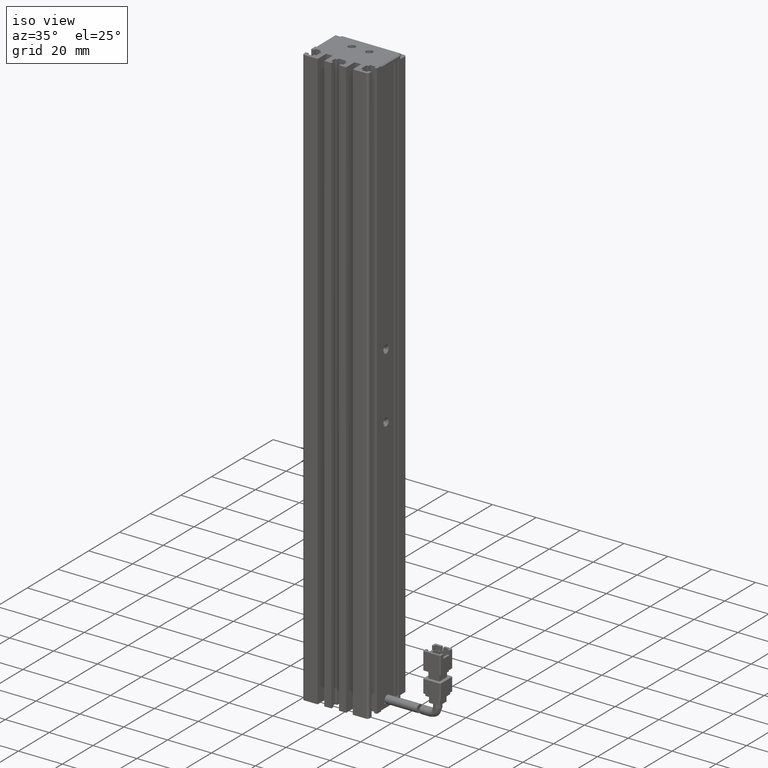
[diagram: clean part render]
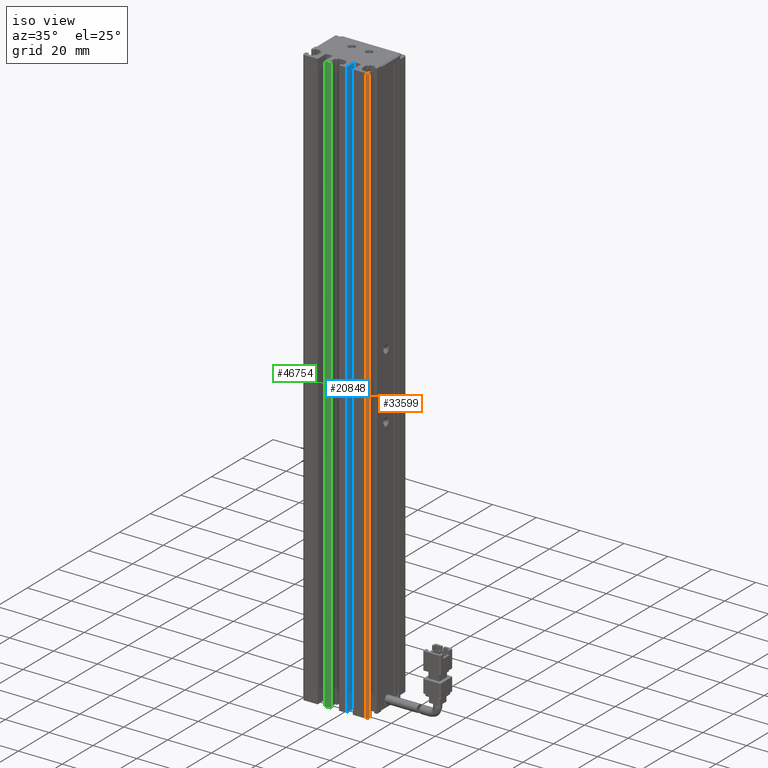
[diagram: same view with three faces highlighted in distinct colors, each labeled with its STEP entity id]
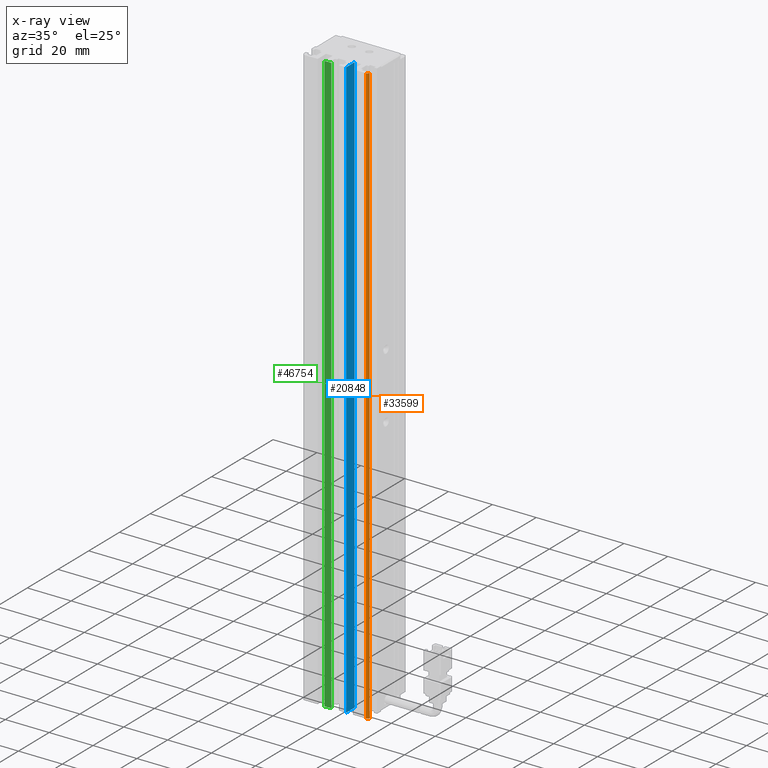
[diagram: x-ray of the same camera — body ghosted, the three highlighted faces saturated]
A machine part, iso view with three faces highlighted in distinct colors.
The next image is the same camera in x-ray (body ghosted, the three faces saturated) — at least one of them is partly hidden behind the body in this view.
Their STEP definitions:

[orange] entity #33599 — the highlighted cylindrical surface (edge-blend (fillet) strip) has radius 1 mm, axis along (-0, -0, -1).
#150 = DIRECTION ( 'NONE',  ( -0.0000000000000000000, -0.0000000000000000000, -1.000000000000000000 ) ) ;
#304 = CARTESIAN_POINT ( 'NONE',  ( 54.92537974683542500, 10.69594479660386800, 18.00000000000000400 ) ) ;
#1325 = AXIS2_PLACEMENT_3D ( 'NONE', #32957, #37242, #54374 ) ;
#1627 = CARTESIAN_POINT ( 'NONE',  ( 55.92537974683542500, 11.69594479660387000, 18.00000000000000400 ) ) ;
#1902 = LINE ( 'NONE', #30102, #13283 ) ;
#1970 = VERTEX_POINT ( 'NONE', #23287 ) ;
#3886 = VERTEX_POINT ( 'NONE', #47328 ) ;
#4086 = CYLINDRICAL_SURFACE ( 'NONE', #1325, 1.000000000000000900 ) ;
#5127 = VERTEX_POINT ( 'NONE', #30807 ) ;
#7790 = VECTOR ( 'NONE', #44884, 1000.000000000000000 ) ;
#8602 = ORIENTED_EDGE ( 'NONE', *, *, #23253, .T. ) ;
#8910 = EDGE_CURVE ( 'NONE', #3886, #5127, #28821, .T. ) ;
#10462 = CIRCLE ( 'NONE', #30292, 1.000000000000000900 ) ;
#13283 = VECTOR ( 'NONE', #150, 1000.000000000000000 ) ;
#17462 = AXIS2_PLACEMENT_3D ( 'NONE', #22040, #21932, #21863 ) ;
#17649 = ORIENTED_EDGE ( 'NONE', *, *, #19597, .T. ) ;
#17737 = VERTEX_POINT ( 'NONE', #304 ) ;
#18497 = CARTESIAN_POINT ( 'NONE',  ( 54.92537974683542500, 11.69594479660387000, 18.00000000000000400 ) ) ;
#19597 = EDGE_CURVE ( 'NONE', #1970, #17737, #10462, .T. ) ;
#21863 = DIRECTION ( 'NONE',  ( -1.000000000000000000, 0.0000000000000000000, 0.0000000000000000000 ) ) ;
#21932 = DIRECTION ( 'NONE',  ( 0.0000000000000000000, 0.0000000000000000000, 1.000000000000000000 ) ) ;
#22040 = CARTESIAN_POINT ( 'NONE',  ( 54.92537974683542500, 11.69594479660387000, -248.0000000000000000 ) ) ;
#22771 = DIRECTION ( 'NONE',  ( -1.000000000000000000, 0.0000000000000000000, 0.0000000000000000000 ) ) ;
#23253 = EDGE_CURVE ( 'NONE', #17737, #3886, #1902, .T. ) ;
#23287 = CARTESIAN_POINT ( 'NONE',  ( 55.92537974683542500, 11.69594479660387000, 18.00000000000000400 ) ) ;
#28821 = CIRCLE ( 'NONE', #17462, 1.000000000000000900 ) ;
#29397 = EDGE_CURVE ( 'NONE', #5127, #1970, #53259, .T. ) ;
#30102 = CARTESIAN_POINT ( 'NONE',  ( 54.92537974683542500, 10.69594479660386800, 18.00000000000000400 ) ) ;
#30292 = AXIS2_PLACEMENT_3D ( 'NONE', #18497, #48328, #22771 ) ;
#30807 = CARTESIAN_POINT ( 'NONE',  ( 55.92537974683542500, 11.69594479660387000, -248.0000000000000000 ) ) ;
#32760 = ORIENTED_EDGE ( 'NONE', *, *, #8910, .T. ) ;
#32957 = CARTESIAN_POINT ( 'NONE',  ( 54.92537974683542500, 11.69594479660387000, 18.00000000000000400 ) ) ;
#33599 = ADVANCED_FACE ( 'NONE', ( #53590 ), #4086, .T. ) ;
#37242 = DIRECTION ( 'NONE',  ( -0.0000000000000000000, -0.0000000000000000000, -1.000000000000000000 ) ) ;
#44884 = DIRECTION ( 'NONE',  ( 0.0000000000000000000, 0.0000000000000000000, 1.000000000000000000 ) ) ;
#47035 = EDGE_LOOP ( 'NONE', ( #17649, #8602, #32760, #51494 ) ) ;
#47328 = CARTESIAN_POINT ( 'NONE',  ( 54.92537974683542500, 10.69594479660386800, -248.0000000000000000 ) ) ;
#48328 = DIRECTION ( 'NONE',  ( -0.0000000000000000000, -0.0000000000000000000, -1.000000000000000000 ) ) ;
#51494 = ORIENTED_EDGE ( 'NONE', *, *, #29397, .T. ) ;
#53259 = LINE ( 'NONE', #1627, #7790 ) ;
#53590 = FACE_OUTER_BOUND ( 'NONE', #47035, .T. ) ;
#54374 = DIRECTION ( 'NONE',  ( -1.000000000000000000, 0.0000000000000000000, 0.0000000000000000000 ) ) ;

[blue] entity #20848 — the highlighted planar face has unit normal (-1, -0, 0).
#3830 = ORIENTED_EDGE ( 'NONE', *, *, #28491, .F. ) ;
#7139 = CARTESIAN_POINT ( 'NONE',  ( 45.92537974683541800, 16.19594479660386800, 18.00000000000000400 ) ) ;
#8281 = EDGE_CURVE ( 'NONE', #24621, #10639, #43686, .T. ) ;
#9005 = LINE ( 'NONE', #47831, #31832 ) ;
#10090 = DIRECTION ( 'NONE',  ( 0.0000000000000000000, 0.0000000000000000000, 1.000000000000000000 ) ) ;
#10639 = VERTEX_POINT ( 'NONE', #32795 ) ;
#10841 = FACE_OUTER_BOUND ( 'NONE', #22033, .T. ) ;
#10905 = CARTESIAN_POINT ( 'NONE',  ( 45.92537974683541800, 10.69594479660386800, 18.00000000000000400 ) ) ;
#13137 = DIRECTION ( 'NONE',  ( -1.000000000000000000, -3.154042683594196600E-016, 0.0000000000000000000 ) ) ;
#16170 = VECTOR ( 'NONE', #41427, 1000.000000000000000 ) ;
#16669 = VERTEX_POINT ( 'NONE', #10905 ) ;
#17349 = PLANE ( 'NONE',  #37922 ) ;
#18418 = CARTESIAN_POINT ( 'NONE',  ( 45.92537974683541800, 10.69594479660386800, -248.0000000000000000 ) ) ;
#20848 = ADVANCED_FACE ( 'NONE', ( #10841 ), #17349, .F. ) ;
#21837 = VECTOR ( 'NONE', #10090, 1000.000000000000000 ) ;
#22033 = EDGE_LOOP ( 'NONE', ( #3830, #22346, #50449, #53137 ) ) ;
#22268 = DIRECTION ( 'NONE',  ( 0.0000000000000000000, 1.000000000000000000, -0.0000000000000000000 ) ) ;
#22346 = ORIENTED_EDGE ( 'NONE', *, *, #26509, .F. ) ;
#24621 = VERTEX_POINT ( 'NONE', #18418 ) ;
#26509 = EDGE_CURVE ( 'NONE', #16669, #39379, #9005, .T. ) ;
#27276 = CARTESIAN_POINT ( 'NONE',  ( 45.92537974683541800, 16.19594479660386800, 18.00000000000000400 ) ) ;
#28491 = EDGE_CURVE ( 'NONE', #39379, #10639, #50277, .T. ) ;
#31480 = CARTESIAN_POINT ( 'NONE',  ( 45.92537974683541800, 10.69594479660386800, 18.00000000000000400 ) ) ;
#31832 = VECTOR ( 'NONE', #22268, 1000.000000000000000 ) ;
#32795 = CARTESIAN_POINT ( 'NONE',  ( 45.92537974683541800, 16.19594479660386800, -248.0000000000000000 ) ) ;
#33647 = VECTOR ( 'NONE', #49324, 1000.000000000000000 ) ;
#37922 = AXIS2_PLACEMENT_3D ( 'NONE', #38829, #13137, #43158 ) ;
#38829 = CARTESIAN_POINT ( 'NONE',  ( 45.92537974683541800, 7.083797468354439400, 18.00000000000000400 ) ) ;
#39379 = VERTEX_POINT ( 'NONE', #27276 ) ;
#39977 = EDGE_CURVE ( 'NONE', #24621, #16669, #49907, .T. ) ;
#41427 = DIRECTION ( 'NONE',  ( 0.0000000000000000000, -0.0000000000000000000, -1.000000000000000000 ) ) ;
#43158 = DIRECTION ( 'NONE',  ( 3.154042683594196600E-016, -1.000000000000000000, 0.0000000000000000000 ) ) ;
#43686 = LINE ( 'NONE', #51254, #33647 ) ;
#47831 = CARTESIAN_POINT ( 'NONE',  ( 45.92537974683541800, 7.083797468354437600, 18.00000000000000400 ) ) ;
#49324 = DIRECTION ( 'NONE',  ( 0.0000000000000000000, 1.000000000000000000, -0.0000000000000000000 ) ) ;
#49907 = LINE ( 'NONE', #31480, #21837 ) ;
#50277 = LINE ( 'NONE', #7139, #16170 ) ;
#50449 = ORIENTED_EDGE ( 'NONE', *, *, #39977, .F. ) ;
#51254 = CARTESIAN_POINT ( 'NONE',  ( 45.92537974683541800, 7.083797468354437600, -248.0000000000000000 ) ) ;
#53137 = ORIENTED_EDGE ( 'NONE', *, *, #8281, .T. ) ;

[green] entity #46754 — the highlighted planar face has unit normal (0, -1, 0).
#1273 = ORIENTED_EDGE ( 'NONE', *, *, #22084, .T. ) ;
#5808 = ORIENTED_EDGE ( 'NONE', *, *, #30714, .F. ) ;
#6907 = LINE ( 'NONE', #11849, #51108 ) ;
#10540 = CARTESIAN_POINT ( 'NONE',  ( 40.92537974683542500, 10.69594479660386800, -248.0000000000000000 ) ) ;
#10983 = CARTESIAN_POINT ( 'NONE',  ( 39.17537974683542500, 10.69594479660386800, -248.0000000000000000 ) ) ;
#11849 = CARTESIAN_POINT ( 'NONE',  ( 40.92537974683542500, 10.69594479660386800, 18.00000000000000400 ) ) ;
#12539 = CARTESIAN_POINT ( 'NONE',  ( 40.92537974683542500, 10.69594479660386800, 18.00000000000000400 ) ) ;
#13836 = VECTOR ( 'NONE', #23547, 1000.000000000000000 ) ;
#16079 = ORIENTED_EDGE ( 'NONE', *, *, #39443, .T. ) ;
#16434 = CARTESIAN_POINT ( 'NONE',  ( 35.92537974683543200, 10.69594479660386800, -248.0000000000000000 ) ) ;
#16956 = DIRECTION ( 'NONE',  ( 0.0000000000000000000, -0.0000000000000000000, -1.000000000000000000 ) ) ;
#18395 = VERTEX_POINT ( 'NONE', #43316 ) ;
#20083 = EDGE_LOOP ( 'NONE', ( #5808, #1273, #16079, #39813 ) ) ;
#20866 = PLANE ( 'NONE',  #29473 ) ;
#22084 = EDGE_CURVE ( 'NONE', #39533, #41240, #24735, .T. ) ;
#23547 = DIRECTION ( 'NONE',  ( 1.000000000000000000, 0.0000000000000000000, 0.0000000000000000000 ) ) ;
#24735 = LINE ( 'NONE', #43385, #47460 ) ;
#25278 = LINE ( 'NONE', #10540, #13836 ) ;
#26567 = EDGE_CURVE ( 'NONE', #46301, #18395, #53164, .T. ) ;
#29473 = AXIS2_PLACEMENT_3D ( 'NONE', #12539, #42559, #16956 ) ;
#30714 = EDGE_CURVE ( 'NONE', #39533, #18395, #6907, .T. ) ;
#33257 = DIRECTION ( 'NONE',  ( 1.000000000000000000, 0.0000000000000000000, 0.0000000000000000000 ) ) ;
#39443 = EDGE_CURVE ( 'NONE', #41240, #46301, #25278, .T. ) ;
#39473 = DIRECTION ( 'NONE',  ( -0.0000000000000000000, 0.0000000000000000000, 1.000000000000000000 ) ) ;
#39533 = VERTEX_POINT ( 'NONE', #45966 ) ;
#39813 = ORIENTED_EDGE ( 'NONE', *, *, #26567, .T. ) ;
#41240 = VERTEX_POINT ( 'NONE', #16434 ) ;
#41875 = FACE_OUTER_BOUND ( 'NONE', #20083, .T. ) ;
#42559 = DIRECTION ( 'NONE',  ( 0.0000000000000000000, -1.000000000000000000, 0.0000000000000000000 ) ) ;
#43258 = VECTOR ( 'NONE', #39473, 1000.000000000000000 ) ;
#43316 = CARTESIAN_POINT ( 'NONE',  ( 39.17537974683542500, 10.69594479660386800, 18.00000000000000400 ) ) ;
#43385 = CARTESIAN_POINT ( 'NONE',  ( 35.92537974683543200, 10.69594479660386800, 18.00000000000000400 ) ) ;
#45966 = CARTESIAN_POINT ( 'NONE',  ( 35.92537974683543200, 10.69594479660386800, 18.00000000000000400 ) ) ;
#46301 = VERTEX_POINT ( 'NONE', #10983 ) ;
#46754 = ADVANCED_FACE ( 'NONE', ( #41875 ), #20866, .T. ) ;
#47452 = DIRECTION ( 'NONE',  ( 0.0000000000000000000, -0.0000000000000000000, -1.000000000000000000 ) ) ;
#47460 = VECTOR ( 'NONE', #47452, 1000.000000000000000 ) ;
#48009 = CARTESIAN_POINT ( 'NONE',  ( 39.17537974683542500, 10.69594479660386800, 18.00000000000000400 ) ) ;
#51108 = VECTOR ( 'NONE', #33257, 1000.000000000000000 ) ;
#53164 = LINE ( 'NONE', #48009, #43258 ) ;